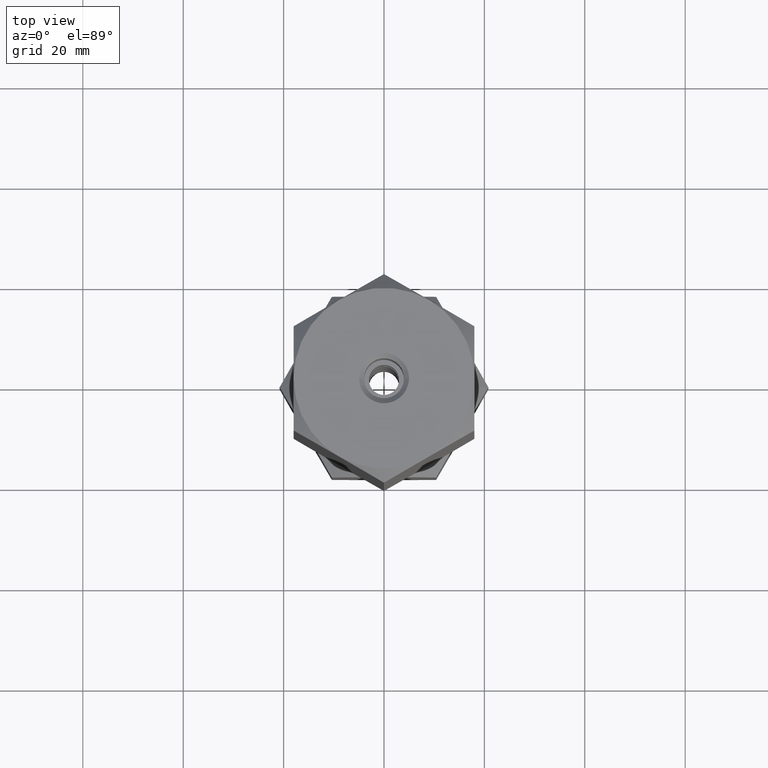
[diagram: clean part render]
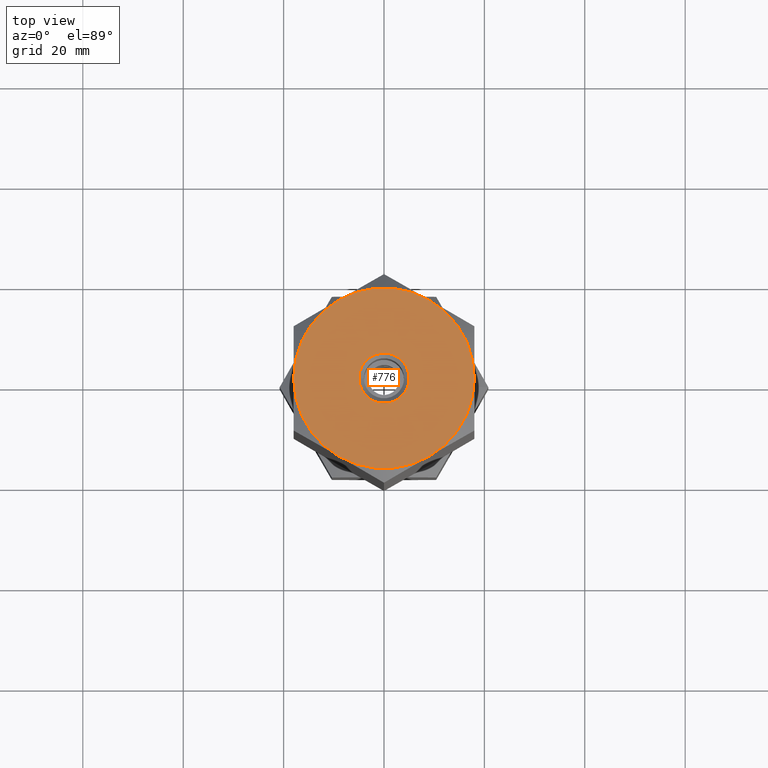
[diagram: same view with one face highlighted and labeled with its STEP entity id]
A machine part, top view. The second image highlights one B-rep face of the part: STEP entity #776.
In plain terms, the highlighted planar face has unit normal (0, 0, 1).
Its self-contained STEP definition (entity closure, byte-faithful):
#10 = ORIENTED_EDGE ( 'NONE', *, *, #1054, .T. ) ;
#79 = CIRCLE ( 'NONE', #1236, 18.00000000000000000 ) ;
#162 = DIRECTION ( 'NONE',  ( 0.000000000000000000, 0.000000000000000000, 1.000000000000000000 ) ) ;
#178 = DIRECTION ( 'NONE',  ( -0.000000000000000000, -0.000000000000000000, -1.000000000000000000 ) ) ;
#179 = CARTESIAN_POINT ( 'NONE',  ( -18.00000000000000000, 0.000000000000000000, 133.3333333333333144 ) ) ;
#182 = VERTEX_POINT ( 'NONE', #1872 ) ;
#187 = ORIENTED_EDGE ( 'NONE', *, *, #588, .T. ) ;
#241 = EDGE_CURVE ( 'NONE', #1320, #1146, #808, .T. ) ;
#273 = PLANE ( 'NONE',  #933 ) ;
#290 = CARTESIAN_POINT ( 'NONE',  ( 0.000000000000000000, 0.000000000000000000, 133.3333333333333144 ) ) ;
#309 = ORIENTED_EDGE ( 'NONE', *, *, #241, .T. ) ;
#401 = EDGE_CURVE ( 'NONE', #590, #439, #475, .T. ) ;
#439 = VERTEX_POINT ( 'NONE', #1187 ) ;
#458 = DIRECTION ( 'NONE',  ( 0.000000000000000000, 0.000000000000000000, 1.000000000000000000 ) ) ;
#472 = ORIENTED_EDGE ( 'NONE', *, *, #950, .T. ) ;
#475 = CIRCLE ( 'NONE', #1265, 4.999999999999990230 ) ;
#482 = AXIS2_PLACEMENT_3D ( 'NONE', #1537, #561, #571 ) ;
#534 = DIRECTION ( 'NONE',  ( -0.000000000000000000, -0.000000000000000000, -1.000000000000000000 ) ) ;
#561 = DIRECTION ( 'NONE',  ( 0.000000000000000000, 0.000000000000000000, 1.000000000000000000 ) ) ;
#569 = DIRECTION ( 'NONE',  ( 1.000000000000000000, 0.000000000000000000, 0.000000000000000000 ) ) ;
#571 = DIRECTION ( 'NONE',  ( 1.000000000000000000, 0.000000000000000000, 0.000000000000000000 ) ) ;
#583 = CARTESIAN_POINT ( 'NONE',  ( 0.000000000000000000, 0.000000000000000000, 133.3333333333333144 ) ) ;
#588 = EDGE_CURVE ( 'NONE', #1178, #182, #1705, .T. ) ;
#590 = VERTEX_POINT ( 'NONE', #1882 ) ;
#606 = DIRECTION ( 'NONE',  ( 1.000000000000000000, 0.000000000000000000, 0.000000000000000000 ) ) ;
#614 = AXIS2_PLACEMENT_3D ( 'NONE', #583, #178, #632 ) ;
#624 = CARTESIAN_POINT ( 'NONE',  ( 18.00000000000000000, 3.004629197474316879E-15, 133.3333333333333144 ) ) ;
#632 = DIRECTION ( 'NONE',  ( 1.000000000000000000, 0.000000000000000000, 0.000000000000000000 ) ) ;
#762 = ORIENTED_EDGE ( 'NONE', *, *, #849, .T. ) ;
#776 = ADVANCED_FACE ( 'NONE', ( #1352, #1692 ), #273, .T. ) ;
#782 = CARTESIAN_POINT ( 'NONE',  ( 0.000000000000000000, 0.000000000000000000, 133.3333333333333144 ) ) ;
#808 = CIRCLE ( 'NONE', #1069, 18.00000000000000000 ) ;
#815 = CARTESIAN_POINT ( 'NONE',  ( 0.000000000000000000, 0.000000000000000000, 133.3333333333333144 ) ) ;
#849 = EDGE_CURVE ( 'NONE', #439, #590, #1540, .T. ) ;
#902 = CIRCLE ( 'NONE', #1907, 18.00000000000000000 ) ;
#905 = CIRCLE ( 'NONE', #482, 18.00000000000000000 ) ;
#933 = AXIS2_PLACEMENT_3D ( 'NONE', #1742, #942, #964 ) ;
#942 = DIRECTION ( 'NONE',  ( 0.000000000000000000, 0.000000000000000000, 1.000000000000000000 ) ) ;
#950 = EDGE_CURVE ( 'NONE', #1266, #1178, #902, .T. ) ;
#964 = DIRECTION ( 'NONE',  ( 1.000000000000000000, 0.000000000000000000, -0.000000000000000000 ) ) ;
#983 = CARTESIAN_POINT ( 'NONE',  ( 8.999999999999994671, -15.58845726811989785, 133.3333333333333144 ) ) ;
#995 = CARTESIAN_POINT ( 'NONE',  ( 0.000000000000000000, 0.000000000000000000, 133.3333333333333144 ) ) ;
#1054 = EDGE_CURVE ( 'NONE', #1379, #1266, #79, .T. ) ;
#1058 = CARTESIAN_POINT ( 'NONE',  ( 0.000000000000000000, 0.000000000000000000, 133.3333333333333144 ) ) ;
#1069 = AXIS2_PLACEMENT_3D ( 'NONE', #1058, #458, #1088 ) ;
#1076 = CARTESIAN_POINT ( 'NONE',  ( 0.000000000000000000, 0.000000000000000000, 133.3333333333333144 ) ) ;
#1088 = DIRECTION ( 'NONE',  ( 1.000000000000000000, 0.000000000000000000, 0.000000000000000000 ) ) ;
#1130 = EDGE_CURVE ( 'NONE', #1146, #1379, #1305, .T. ) ;
#1144 = CARTESIAN_POINT ( 'NONE',  ( -9.000000000000003553, -15.58845726811989074, 133.3333333333333144 ) ) ;
#1146 = VERTEX_POINT ( 'NONE', #1144 ) ;
#1154 = ORIENTED_EDGE ( 'NONE', *, *, #401, .T. ) ;
#1178 = VERTEX_POINT ( 'NONE', #1815 ) ;
#1187 = CARTESIAN_POINT ( 'NONE',  ( -4.999999999999990230, 6.123233995736754449E-16, 133.3333333333333144 ) ) ;
#1192 = DIRECTION ( 'NONE',  ( 0.000000000000000000, 0.000000000000000000, 1.000000000000000000 ) ) ;
#1236 = AXIS2_PLACEMENT_3D ( 'NONE', #782, #162, #606 ) ;
#1265 = AXIS2_PLACEMENT_3D ( 'NONE', #995, #534, #1985 ) ;
#1266 = VERTEX_POINT ( 'NONE', #624 ) ;
#1277 = ORIENTED_EDGE ( 'NONE', *, *, #1130, .T. ) ;
#1305 = CIRCLE ( 'NONE', #1908, 18.00000000000000000 ) ;
#1320 = VERTEX_POINT ( 'NONE', #179 ) ;
#1352 = FACE_BOUND ( 'NONE', #1491, .T. ) ;
#1379 = VERTEX_POINT ( 'NONE', #983 ) ;
#1465 = DIRECTION ( 'NONE',  ( 0.000000000000000000, 0.000000000000000000, 1.000000000000000000 ) ) ;
#1491 = EDGE_LOOP ( 'NONE', ( #1154, #762 ) ) ;
#1524 = DIRECTION ( 'NONE',  ( 0.000000000000000000, 0.000000000000000000, 1.000000000000000000 ) ) ;
#1537 = CARTESIAN_POINT ( 'NONE',  ( 0.000000000000000000, 0.000000000000000000, 133.3333333333333144 ) ) ;
#1540 = CIRCLE ( 'NONE', #614, 4.999999999999990230 ) ;
#1651 = EDGE_LOOP ( 'NONE', ( #10, #472, #187, #1934, #309, #1277 ) ) ;
#1687 = EDGE_CURVE ( 'NONE', #182, #1320, #905, .T. ) ;
#1692 = FACE_OUTER_BOUND ( 'NONE', #1651, .T. ) ;
#1705 = CIRCLE ( 'NONE', #1942, 18.00000000000000000 ) ;
#1742 = CARTESIAN_POINT ( 'NONE',  ( 0.000000000000000000, 0.000000000000000000, 133.3333333333333144 ) ) ;
#1815 = CARTESIAN_POINT ( 'NONE',  ( 9.000000000000000000, 15.58845726811989252, 133.3333333333333144 ) ) ;
#1872 = CARTESIAN_POINT ( 'NONE',  ( -8.999999999999998224, 15.58845726811990318, 133.3333333333333144 ) ) ;
#1882 = CARTESIAN_POINT ( 'NONE',  ( 4.999999999999990230, 0.000000000000000000, 133.3333333333333144 ) ) ;
#1907 = AXIS2_PLACEMENT_3D ( 'NONE', #290, #1192, #1976 ) ;
#1908 = AXIS2_PLACEMENT_3D ( 'NONE', #815, #1465, #1983 ) ;
#1934 = ORIENTED_EDGE ( 'NONE', *, *, #1687, .T. ) ;
#1942 = AXIS2_PLACEMENT_3D ( 'NONE', #1076, #1524, #569 ) ;
#1976 = DIRECTION ( 'NONE',  ( 1.000000000000000000, 0.000000000000000000, 0.000000000000000000 ) ) ;
#1983 = DIRECTION ( 'NONE',  ( 1.000000000000000000, 0.000000000000000000, 0.000000000000000000 ) ) ;
#1985 = DIRECTION ( 'NONE',  ( 1.000000000000000000, 0.000000000000000000, 0.000000000000000000 ) ) ;